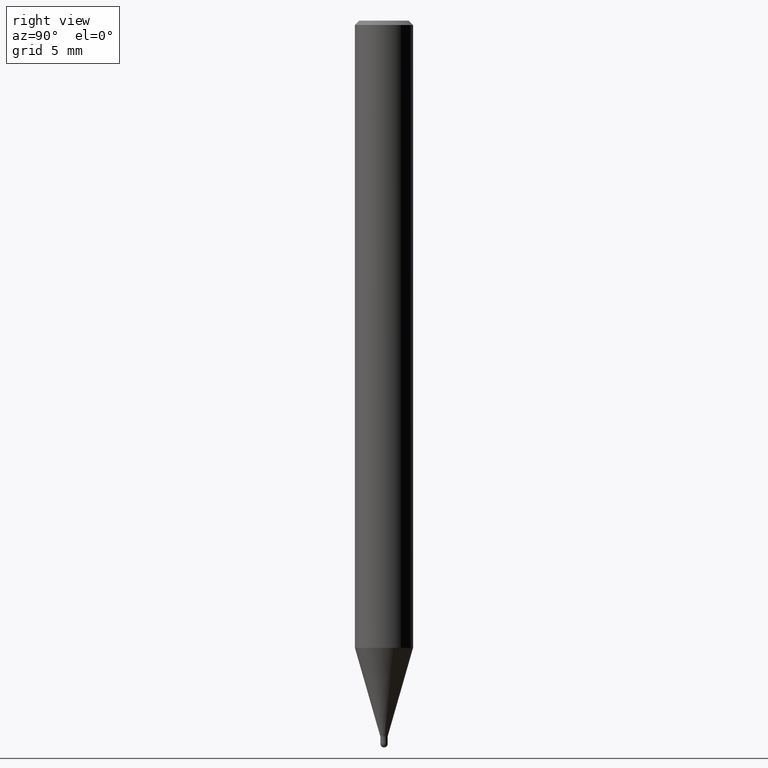
[diagram: clean part render]
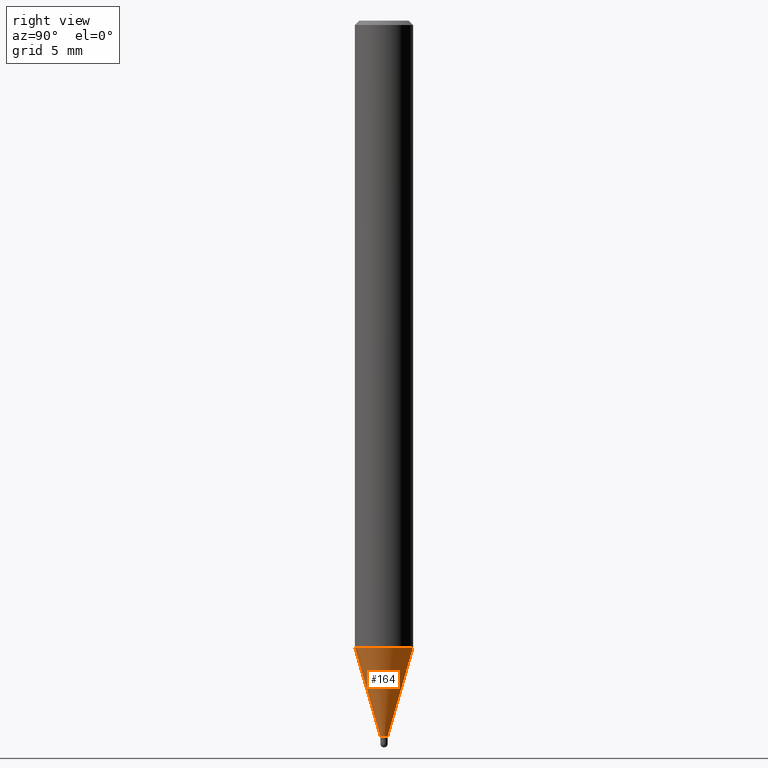
[diagram: same view with one face highlighted and labeled with its STEP entity id]
A machine part, right view. The second image highlights one B-rep face of the part: STEP entity #164.
In plain terms, the highlighted conical surface has half-angle 16 deg.
Its self-contained STEP definition (entity closure, byte-faithful):
#124=EDGE_CURVE('',#160,#170,#255,.T.);
#160=VERTEX_POINT('',#297);
#164=ADVANCED_FACE('',(#301),#302,.T.);
#166=VERTEX_POINT('',#304);
#168=EDGE_CURVE('',#184,#166,#306,.T.);
#170=VERTEX_POINT('',#308);
#182=EDGE_CURVE('',#184,#160,#322,.T.);
#184=VERTEX_POINT('',#324);
#188=EDGE_CURVE('',#170,#166,#328,.T.);
#255=CIRCLE('',#401,0.24995);
#297=CARTESIAN_POINT('',(0.0,0.24995,-49.25));
#301=FACE_OUTER_BOUND('',#455,.T.);
#302=CONICAL_SURFACE('',#456,1.12495,0.27925160696619);
#304=CARTESIAN_POINT('',(2.44915147732706E-016,-1.99995,-43.147));
#306=CIRCLE('',#461,1.99995);
#308=CARTESIAN_POINT('',(3.06090358137903E-017,-0.24995,-49.25));
#322=LINE('',#478,#479);
#324=CARTESIAN_POINT('',(0.0,1.99995,-43.147));
#328=LINE('',#486,#487);
#401=AXIS2_PLACEMENT_3D('',#558,#559,#560);
#455=EDGE_LOOP('',(#619,#620,#621,#622));
#456=AXIS2_PLACEMENT_3D('',#623,#624,#625);
#461=AXIS2_PLACEMENT_3D('',#626,#627,#628);
#478=CARTESIAN_POINT('',(-1.37762091773248E-016,1.12495,-46.1985));
#479=VECTOR('',#647,1.0);
#486=CARTESIAN_POINT('',(1.37762091773248E-016,-1.12495,-46.1985));
#487=VECTOR('',#648,1.0);
#558=CARTESIAN_POINT('',(0.0,0.0,-49.25));
#559=DIRECTION('',(0.0,0.0,-1.0));
#560=DIRECTION('',(0.0,1.0,0.0));
#619=ORIENTED_EDGE('',*,*,#182,.F.);
#620=ORIENTED_EDGE('',*,*,#168,.T.);
#621=ORIENTED_EDGE('',*,*,#188,.F.);
#622=ORIENTED_EDGE('',*,*,#124,.F.);
#623=CARTESIAN_POINT('',(0.0,0.0,-46.1985));
#624=DIRECTION('',(-0.0,-0.0,1.0));
#625=DIRECTION('',(0.0,1.0,0.0));
#626=CARTESIAN_POINT('',(0.0,0.0,-43.147));
#627=DIRECTION('',(0.0,0.0,-1.0));
#628=DIRECTION('',(0.0,1.0,0.0));
#647=DIRECTION('',(3.37545993768291E-017,-0.275636324043808,-0.961261991793921));
#648=DIRECTION('',(3.37545993768291E-017,-0.275636324043808,0.961261991793921));